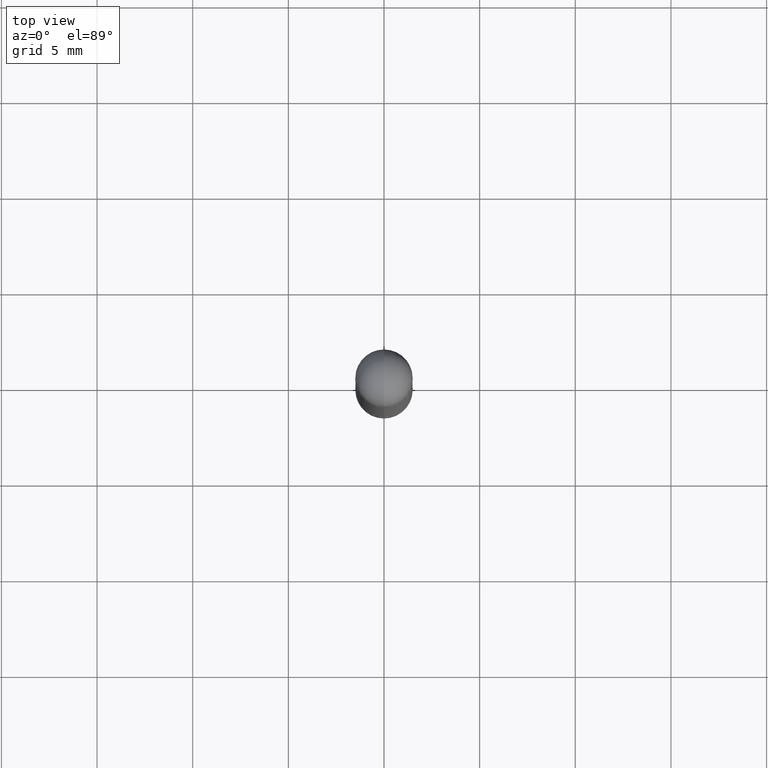
[diagram: clean part render]
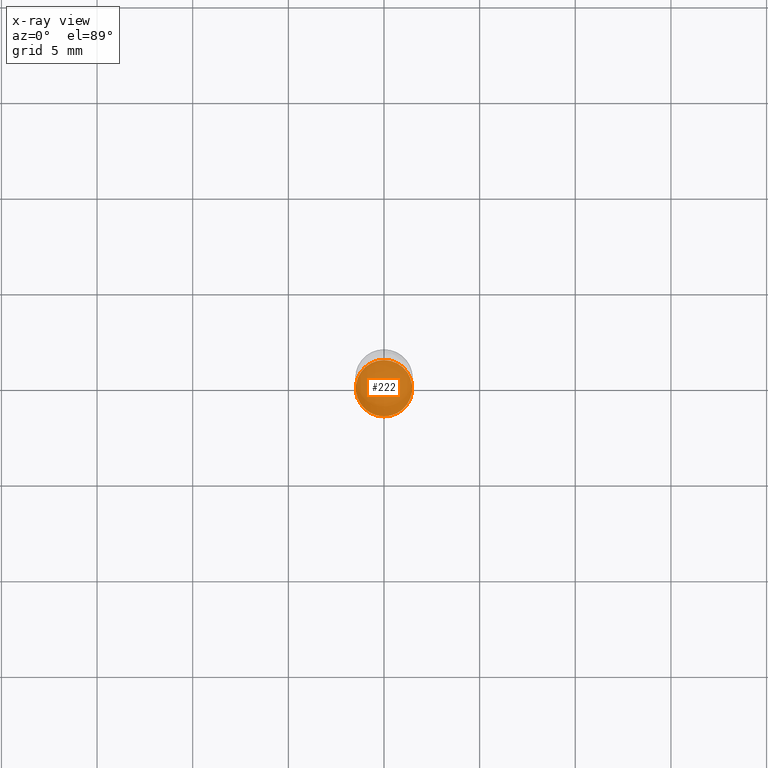
[diagram: x-ray — body ghosted, one internal face saturated and labeled with its STEP entity id]
A machine part, top view, then the same camera in x-ray: the body is ghosted and one INTERNAL B-rep face — a face not visible from any outside direction — is saturated and labeled: STEP entity #222.
In plain terms, the highlighted planar face has unit normal (-0, 0, 1).
Its self-contained STEP definition (entity closure, byte-faithful):
#41 = CARTESIAN_POINT ( 'NONE',  ( 3.090361616595994104E-29, -4.385577058882440771E-15, -1.259899999999999798 ) ) ;
#59 = AXIS2_PLACEMENT_3D ( 'NONE', #41, #367, #300 ) ;
#114 = PLANE ( 'NONE',  #345 ) ;
#115 = ORIENTED_EDGE ( 'NONE', *, *, #314, .F. ) ;
#188 = DIRECTION ( 'NONE',  ( -2.452862621315973370E-29, 3.480892974745964605E-15, 1.000000000000000000 ) ) ;
#198 = CIRCLE ( 'NONE', #403, 0.05804999999999999744 ) ;
#222 = ADVANCED_FACE ( 'NONE', ( #609 ), #114, .F. ) ;
#237 = DIRECTION ( 'NONE',  ( -6.982962677686265922E-15, -1.000000000000000000, 3.480892974745964605E-15 ) ) ;
#246 = EDGE_CURVE ( 'NONE', #406, #594, #198, .T. ) ;
#294 = CARTESIAN_POINT ( 'NONE',  ( 3.090361616595994104E-29, -4.385577058882440771E-15, -1.259899999999999798 ) ) ;
#300 = DIRECTION ( 'NONE',  ( -6.982962677686265922E-15, -1.000000000000000000, 4.706025828879006993E-15 ) ) ;
#314 = EDGE_CURVE ( 'NONE', #594, #406, #418, .T. ) ;
#345 = AXIS2_PLACEMENT_3D ( 'NONE', #294, #797, #237 ) ;
#367 = DIRECTION ( 'NONE',  ( -2.452862621315973370E-29, 3.480892974745964605E-15, 1.000000000000000000 ) ) ;
#403 = AXIS2_PLACEMENT_3D ( 'NONE', #745, #188, #430 ) ;
#406 = VERTEX_POINT ( 'NONE', #758 ) ;
#408 = ORIENTED_EDGE ( 'NONE', *, *, #246, .F. ) ;
#418 = CIRCLE ( 'NONE', #59, 0.05804999999999999744 ) ;
#430 = DIRECTION ( 'NONE',  ( -6.982962677686265922E-15, -1.000000000000000000, 4.706025828879006993E-15 ) ) ;
#478 = CARTESIAN_POINT ( 'NONE',  ( -4.053609834396568584E-16, -0.05805000000000438282, -1.259899999999999576 ) ) ;
#594 = VERTEX_POINT ( 'NONE', #478 ) ;
#609 = FACE_OUTER_BOUND ( 'NONE', #766, .T. ) ;
#745 = CARTESIAN_POINT ( 'NONE',  ( 3.090361616595994104E-29, -4.385577058882440771E-15, -1.259899999999999798 ) ) ;
#758 = CARTESIAN_POINT ( 'NONE',  ( 4.160227717875699517E-16, 0.05804999999999560512, -1.259900000000000020 ) ) ;
#766 = EDGE_LOOP ( 'NONE', ( #115, #408 ) ) ;
#797 = DIRECTION ( 'NONE',  ( -2.452862621315973090E-29, 3.480892974745964605E-15, 1.000000000000000000 ) ) ;